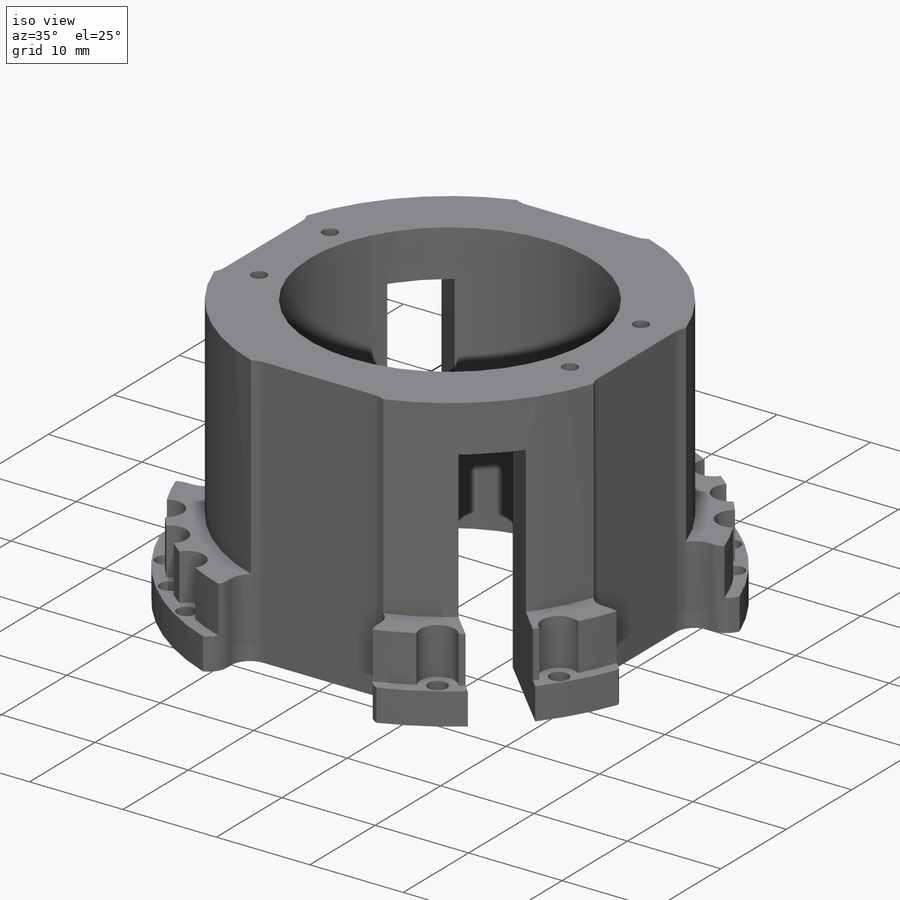
[diagram: iso view]
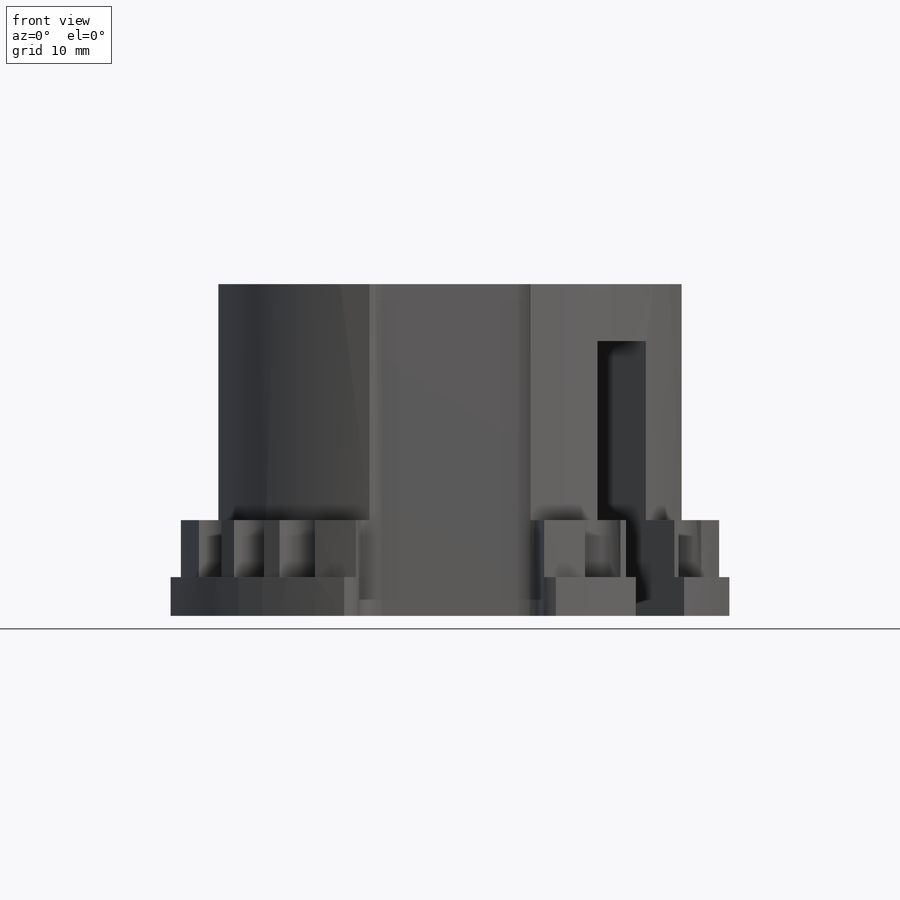
[diagram: front view]
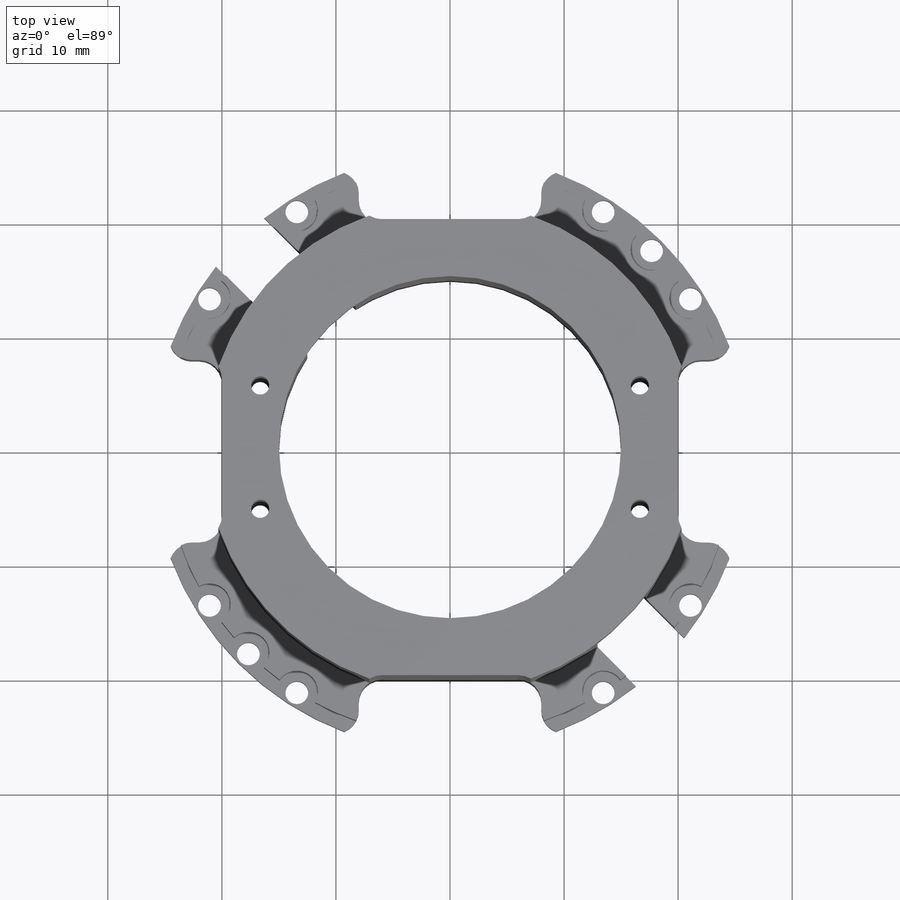
[diagram: top view]
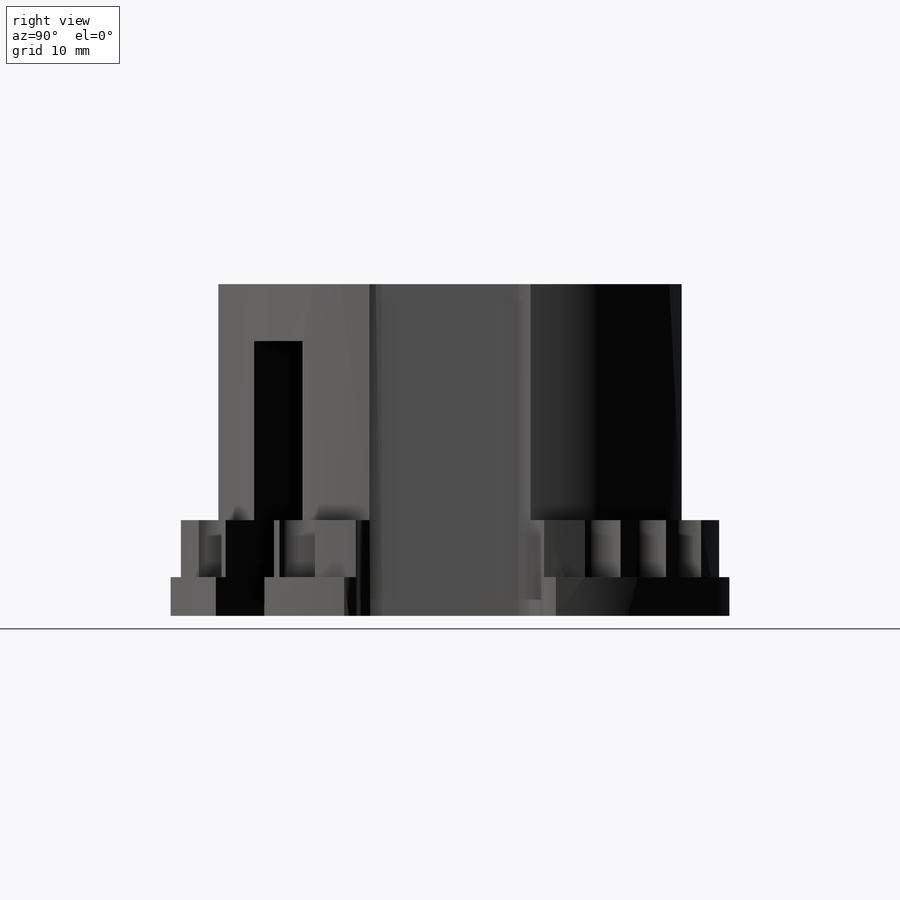
[diagram: right view]
SOLIDWORKS PART (.sldprt)
format: sldprt  version: not decoded by parser v0  size: 3,511,296 bytes
history: native  units: mm
features: sketch x23, cut_extrude x15, fillet x10, extrude x7, plane x5, pattern_circular x2, material x1 (+25 scaffold rows collapsed; 9 parser-record rows omitted)
feature tree (97):
  scaffold x25  (default folders/planes/origin — collapsed)
  material  "Material <not specified>"
  parser-record x9  (decoder bookkeeping rows leaked as tree rows — omitted from the tree; the rows remain in map.json)
  sketch  "Sketch1"  dims[c1.D1=52.4mm c1.D4=35.0mm c1.D5=50.0mm c1.D6=2.0mm c1.D8=2.0mm c2.D4=38.0mm c2.D2=24.5mm c3.D4=24.5mm c3.D7=25.0mm c4.D7=32.5deg c4.D9=25.0mm c5.D9=~16.127309deg c6.D9=25.0mm c7.D9=45.0deg c7.D4=7.5mm c7.D3=4.0 c7.D10=4.0]
  extrude  "Boss-Extrude1"  Depth=3.4mm
  sketch  "Sketch3"  dims[D1=50.0mm]
  extrude  "Boss-Extrude3"  Depth=5mm
  sketch  "Sketch4"  dims[D1=3.7mm D2=3.7mm]
  cut_extrude  "Cut-Extrude1"  [1 undecoded]
  sketch  "Sketch9"  dims[D1=38.0mm]
  cut_extrude  "Center Hole"  [1 undecoded]
  plane  "Offset Plane for Passive Cube"  Offset=29.1mm
  plane  "Offset Plane for CR123A Cube"  Offset=32.45mm
  plane  "Offset Plane for CR123A Cube v2"  Offset=32.22mm
  sketch  "CR123A Battery Sketch"  dims[c1.D1=18.0mm c1.D2=18.0mm c1.D3=18.0mm c1.D4=18.0mm c1.CR123A Diameter=17.0mm c2.D1=18.0mm c2.D2=18.0mm]
  sketch  "Sketch10"  dims[CR123A FilletRadius=1.0mm D1=~0.85589mm]
  cut_extrude  "Battery Hole"  [1 undecoded]
  sketch  "Sketch2"  dims[c1.D1=31.25mm c1.D2=1.6mm c1.D4=43.0mm c1.D5=30.0mm c1.D3=~12.509449mm c2.D3=22.25deg]
  extrude  "Boss-Extrude2"  [1 undecoded]
  sketch  "Sketch6"
  cut_extrude  "Cut-Extrude3"  [1 undecoded]
  fillet  "Fillet2"  Radius=2mm
  fillet  "Fillet3"  Radius=2mm
  plane  "Plane2"
  sketch  "Sketch7"
  extrude  "Boss-Extrude4"  [1 undecoded]
  cut_extrude  "Top Face Mounting Holes"  [1 undecoded]
  sketch  "Sketch27"  dims[c1.D1=35.0mm c1.D3=1.6mm c1.D2=17.5mm c2.D2=18.0deg]
  sketch  "Sketch11"  dims[D1=45.0mm]
  extrude  "Battery Main Extrude"  [1 undecoded]
  sketch  "Sketch13"  dims[c1.Screw Holes for Top Face Diameter=1.6mm c1.D1=40.0mm c1.D2=17.5mm c2.D2=22.25deg c2.D3=3.0]
  cut_extrude  "Battery Small Shell Mounting Holes"  [1 undecoded]
  sketch  "Sketch15"  dims[D1=4.25mm D2=1.3mm]
  cut_extrude  "Battery Config Cable Channel"  [1 undecoded]
  fillet  "Battery Config Cable Channel Fillet"  Radius=1mm
  plane  "Plane3"  Offset=5mm
  sketch  "Sketch28"  dims[D1=3.0mm]
  cut_extrude  "Cut-Extrude17"  [1 undecoded]
  sketch  "Sketch23"
  cut_extrude  "Battery Shorten Base Plate"  Depth=1.63mm
  sketch  "Sketch18"
  extrude  "Boss-Extrude6"  Depth=0.1mm
  sketch  "Sketch19"  dims[D1=69.85mm]
  extrude  "Boss-Extrude7"  Depth=5mm
  fillet  "Fillet7"  Radius=2mm
  sketch  "Sketch20"  dims[D1=2.7mm D2=3.0mm D3=31.0mm D4=16.0]
  cut_extrude  "16 Slots"  [1 undecoded]
  sketch  "Sketch21"  dims[D1=1.4mm D2=4.0]
  cut_extrude  "12 Screw Holes"  [1 undecoded]
  sketch  "Sketch22"  dims[D2=2.0mm D1=8.0mm D3=8.0mm]
  cut_extrude  "Cut-Extrude10"  [1 undecoded]
  pattern_circular  "CirPattern3"  Count=4 Angle=360deg
  fillet  "Fillet8"  Radius=2mm
  sketch  "Sketch24"  dims[D2=25.0mm D3=5.0mm D1=1.0mm D4=~0.769173mm]
  cut_extrude  "Sensor Cable Cutout"  [1 undecoded]
  pattern_circular  "Sensor Cable Cutout Circular Pattern"  Count=4 Angle=360deg
  sketch  "Sketch25"  dims[c1.D1=41.0mm c1.D2=13.0mm c1.D3=13.0mm c1.D4=16.0mm c1.D5=~7.550742mm c2.D5=45.0deg c2.D6=2.5mm c2.D7=3.5mm c2.D8=1.0mm]
  cut_extrude  "Cut-Extrude15"  Depth=2mm
  sketch  "Sketch26"  dims[D1=4.0mm D2=9.0mm]
  cut_extrude  "Cut-Extrude16"  Depth=1.5mm
  fillet  "Fillet9"  Radius=1mm
  fillet  "Fillet10"  Radius=1mm
  fillet  "Fillet12"  Radius=1mm
  fillet  "Fillet13"  Radius=1mm
  fillet  "Fillet18"  Radius=0.3mm
decode coverage: 38 of 57 modeling features carry decoded parameters
note: ~ marks probable driven/reference dimensions
note: 15 parameter values undecoded
summary: no parameter record found for 15 features
note: suppression state not decoded; provenance and decode notes live in map.json
